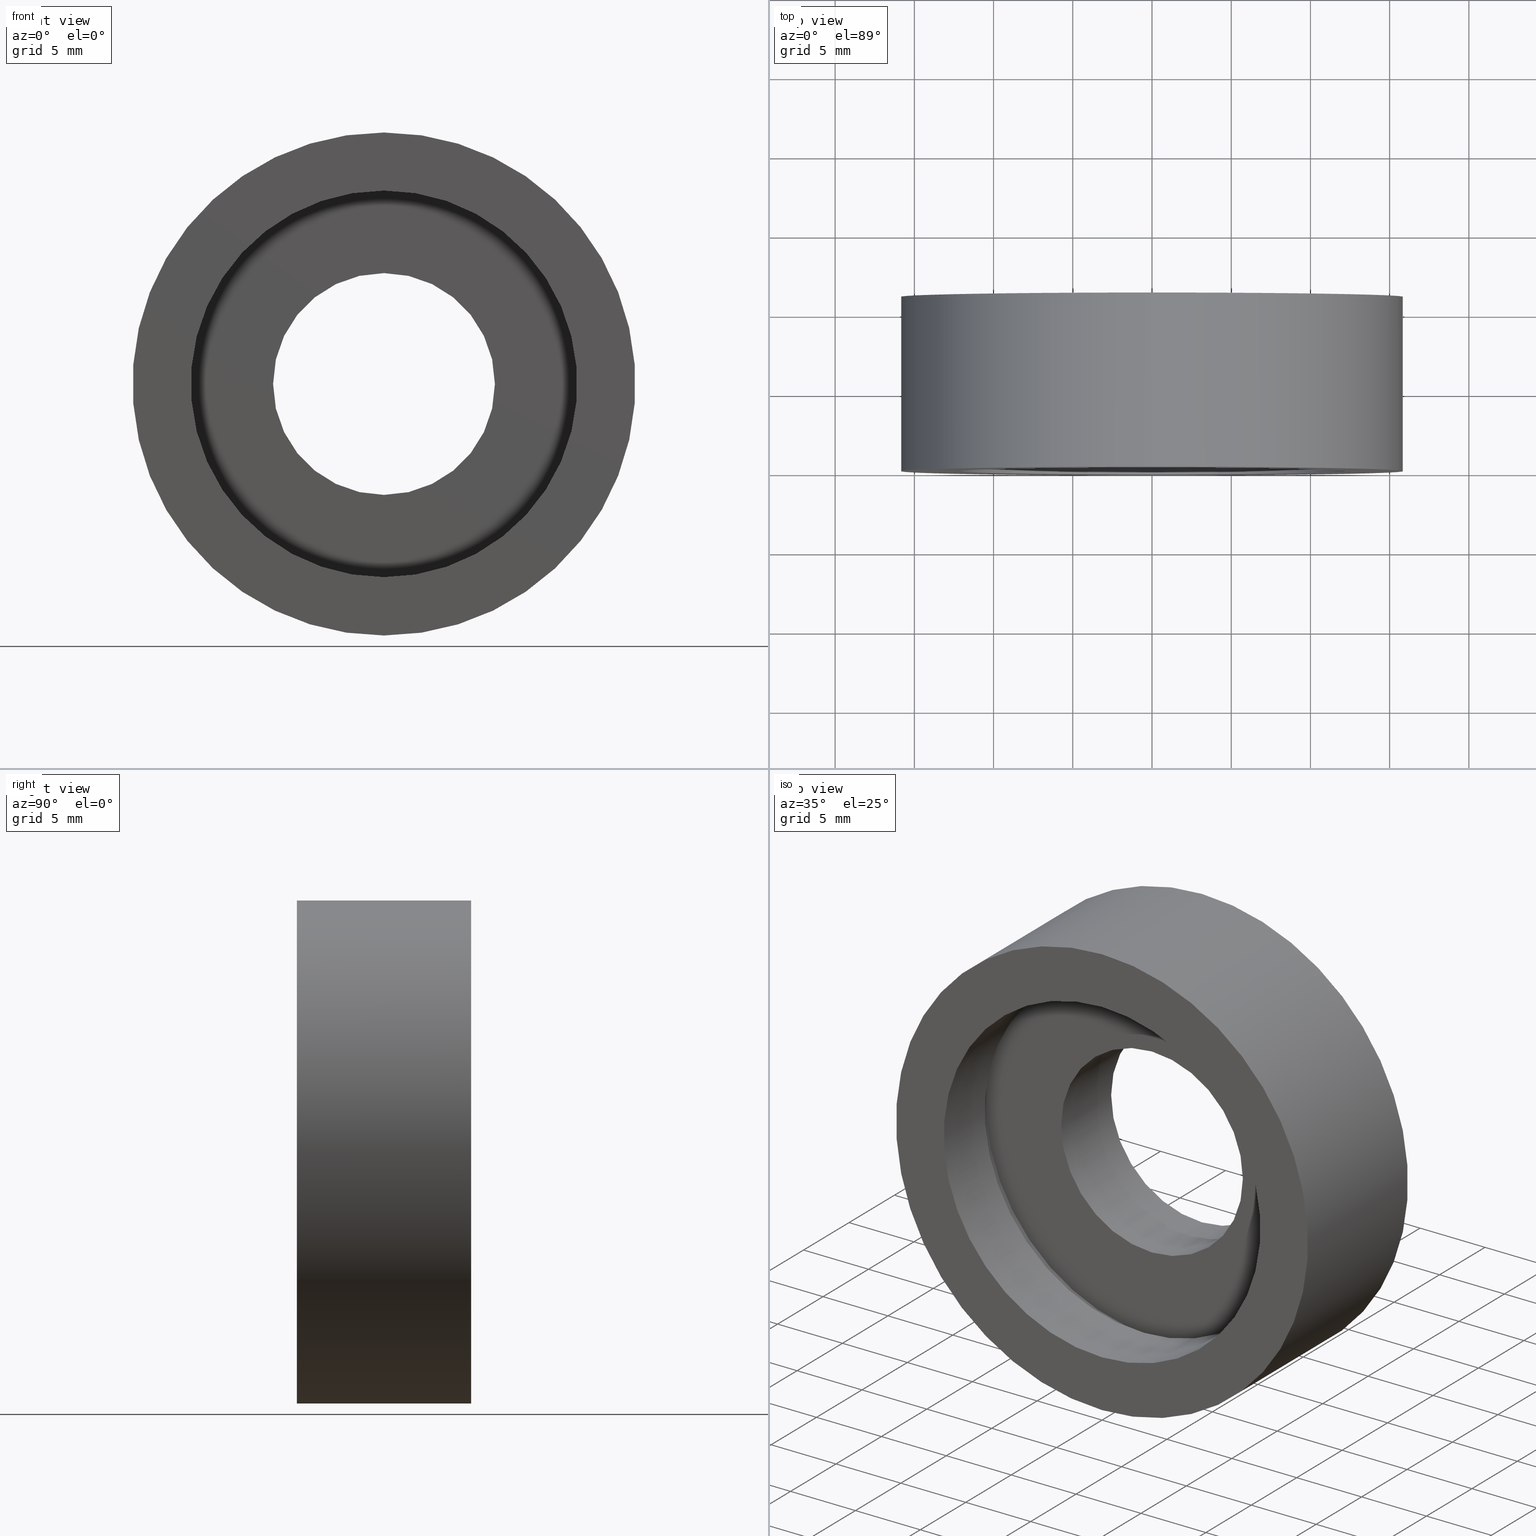
[diagram: canonical four-view strip — front | top / right | iso, engineering-drawing reading convention]
A machine part, canonical four-view strip (front | top / right | iso — engineering-drawing reading convention). The complete STEP part file that produces these views, byte-faithful:
ISO-10303-21;
HEADER;
FILE_DESCRIPTION (( 'STEP AP214' ),
    '1' );
FILE_NAME ('504083.STEP',
    '2019-10-09T08:25:23',
    ( 'user' ),
    ( '΢���й�' ),
    'SwSTEP 2.0',
    'SolidWorks 2016',
    '' );
FILE_SCHEMA (( 'AUTOMOTIVE_DESIGN' ));
ENDSEC;

DATA;
#1 = EDGE_LOOP ( 'NONE', ( #190, #24, #210, #95 ) ) ;
#2 = FACE_OUTER_BOUND ( 'NONE', #269, .T. ) ;
#3 = CARTESIAN_POINT ( 'NONE',  ( 0.0000000000000000000, 4.499999999999997300, 12.80000000000001000 ) ) ;
#4 = AXIS2_PLACEMENT_3D ( 'NONE', #33, #309, #114 ) ;
#5 = CARTESIAN_POINT ( 'NONE',  ( 1.567547902908613200E-015, 5.499999999999998200, -12.80000000000000800 ) ) ;
#6 = CARTESIAN_POINT ( 'NONE',  ( 0.0000000000000000000, 10.99999999999999600, 0.0000000000000000000 ) ) ;
#7 = SURFACE_STYLE_FILL_AREA ( #421 ) ;
#8 = EDGE_LOOP ( 'NONE', ( #228, #15 ) ) ;
#9 = DIRECTION ( 'NONE',  ( -0.0000000000000000000, 1.000000000000000000, -0.0000000000000000000 ) ) ;
#10 = FILL_AREA_STYLE_COLOUR ( '', #130 ) ;
#11 = MECHANICAL_DESIGN_GEOMETRIC_PRESENTATION_REPRESENTATION (  '', ( #56 ), #274 ) ;
#12 = EDGE_CURVE ( 'NONE', #278, #142, #245, .T. ) ;
#13 = SHAPE_DEFINITION_REPRESENTATION ( #206, #79 ) ;
#14 = CARTESIAN_POINT ( 'NONE',  ( 1.494069094959771600E-015, 60.02082041425541100, -12.20000000000000600 ) ) ;
#15 = ORIENTED_EDGE ( 'NONE', *, *, #23, .F. ) ;
#16 = CARTESIAN_POINT ( 'NONE',  ( 0.0000000000000000000, 0.0000000000000000000, 0.0000000000000000000 ) ) ;
#17 = ORIENTED_EDGE ( 'NONE', *, *, #328, .T. ) ;
#18 = DIRECTION ( 'NONE',  ( 0.0000000000000000000, 0.0000000000000000000, 1.000000000000000000 ) ) ;
#19 = ADVANCED_FACE ( 'NONE', ( #2 ), #93, .T. ) ;
#20 = PRODUCT_DEFINITION ( 'δ֪', '', #247, #333 ) ;
#21 = EDGE_LOOP ( 'NONE', ( #306, #74, #349, #65 ) ) ;
#22 = DIRECTION ( 'NONE',  ( -0.0000000000000000000, 1.000000000000000000, -0.0000000000000000000 ) ) ;
#23 = EDGE_CURVE ( 'NONE', #142, #312, #63, .T. ) ;
#24 = ORIENTED_EDGE ( 'NONE', *, *, #355, .F. ) ;
#25 = FACE_OUTER_BOUND ( 'NONE', #423, .T. ) ;
#26 = CYLINDRICAL_SURFACE ( 'NONE', #44, 12.80000000000001000 ) ;
#27 = SURFACE_STYLE_FILL_AREA ( #194 ) ;
#28 =( NAMED_UNIT ( * ) PLANE_ANGLE_UNIT ( ) SI_UNIT ( $, .RADIAN. ) );
#29 = DIRECTION ( 'NONE',  ( -0.0000000000000000000, 1.000000000000000000, -0.0000000000000000000 ) ) ;
#30 = VERTEX_POINT ( 'NONE', #101 ) ;
#31 = CIRCLE ( 'NONE', #364, 15.87500000000000400 ) ;
#32 = AXIS2_PLACEMENT_3D ( 'NONE', #38, #133, #183 ) ;
#33 = CARTESIAN_POINT ( 'NONE',  ( 0.0000000000000000000, 60.02082041425541100, 0.0000000000000000000 ) ) ;
#34 = PRODUCT ( '504083', '504083', '', ( #248 ) ) ;
#35 = AXIS2_PLACEMENT_3D ( 'NONE', #119, #29, #287 ) ;
#36 = DIRECTION ( 'NONE',  ( -0.0000000000000000000, 1.000000000000000000, -0.0000000000000000000 ) ) ;
#37 = DIRECTION ( 'NONE',  ( -0.0000000000000000000, 1.000000000000000000, -0.0000000000000000000 ) ) ;
#38 = CARTESIAN_POINT ( 'NONE',  ( 0.0000000000000000000, 60.02082041425541100, 0.0000000000000000000 ) ) ;
#39 = DIRECTION ( 'NONE',  ( -0.0000000000000000000, 1.000000000000000000, -0.0000000000000000000 ) ) ;
#40 =( NAMED_UNIT ( * ) SI_UNIT ( $, .STERADIAN. ) SOLID_ANGLE_UNIT ( ) );
#41 = SURFACE_STYLE_USAGE ( .BOTH. , #108 ) ;
#42 = VECTOR ( 'NONE', #39, 1000.000000000000000 ) ;
#43 = FILL_AREA_STYLE_COLOUR ( '', #231 ) ;
#44 = AXIS2_PLACEMENT_3D ( 'NONE', #92, #98, #90 ) ;
#45 = DIRECTION ( 'NONE',  ( -0.0000000000000000000, 1.000000000000000000, -0.0000000000000000000 ) ) ;
#46 = AXIS2_PLACEMENT_3D ( 'NONE', #318, #97, #129 ) ;
#47 = FACE_BOUND ( 'NONE', #8, .T. ) ;
#48 = ORIENTED_EDGE ( 'NONE', *, *, #382, .T. ) ;
#49 =( NAMED_UNIT ( * ) SI_UNIT ( $, .STERADIAN. ) SOLID_ANGLE_UNIT ( ) );
#50 =( NAMED_UNIT ( * ) SI_UNIT ( $, .STERADIAN. ) SOLID_ANGLE_UNIT ( ) );
#51 = CARTESIAN_POINT ( 'NONE',  ( 1.567547902908613400E-015, 60.02082041425541100, -12.80000000000001000 ) ) ;
#52 = ADVANCED_FACE ( 'NONE', ( #416, #431 ), #424, .F. ) ;
#53 = VECTOR ( 'NONE', #188, 1000.000000000000000 ) ;
#54 = EDGE_CURVE ( 'NONE', #358, #259, #402, .T. ) ;
#55 = DIRECTION ( 'NONE',  ( 0.0000000000000000000, 0.0000000000000000000, 1.000000000000000000 ) ) ;
#56 = STYLED_ITEM ( 'NONE', ( #255 ), #394 ) ;
#57 = ADVANCED_FACE ( 'NONE', ( #317 ), #86, .F. ) ;
#58 = SURFACE_STYLE_FILL_AREA ( #288 ) ;
#59 = UNCERTAINTY_MEASURE_WITH_UNIT (LENGTH_MEASURE( 1.000000000000000100E-005 ), #250, 'distance_accuracy_value', 'NONE');
#60 = LINE ( 'NONE', #428, #397 ) ;
#61 = VERTEX_POINT ( 'NONE', #390 ) ;
#62 = PRESENTATION_LAYER_ASSIGNMENT (  '', '', ( #56 ) ) ;
#63 = CIRCLE ( 'NONE', #89, 7.000000000000007100 ) ;
#64 = MECHANICAL_DESIGN_GEOMETRIC_PRESENTATION_REPRESENTATION (  '', ( #415 ), #85 ) ;
#65 = ORIENTED_EDGE ( 'NONE', *, *, #246, .T. ) ;
#66 = ORIENTED_EDGE ( 'NONE', *, *, #314, .T. ) ;
#67 = PRESENTATION_LAYER_ASSIGNMENT (  '', '', ( #415 ) ) ;
#68 = ORIENTED_EDGE ( 'NONE', *, *, #351, .F. ) ;
#69 = CARTESIAN_POINT ( 'NONE',  ( 0.0000000000000000000, 4.499999999999997300, 0.0000000000000000000 ) ) ;
#70 = FILL_AREA_STYLE ('',( #127 ) ) ;
#71 = ORIENTED_EDGE ( 'NONE', *, *, #314, .F. ) ;
#72 = CARTESIAN_POINT ( 'NONE',  ( 7.000000000000007100, 11.00000000000000000, 0.0000000000000000000 ) ) ;
#73 = FACE_OUTER_BOUND ( 'NONE', #76, .T. ) ;
#74 = ORIENTED_EDGE ( 'NONE', *, *, #251, .F. ) ;
#75 = SURFACE_STYLE_USAGE ( .BOTH. , #195 ) ;
#76 = EDGE_LOOP ( 'NONE', ( #240, #152 ) ) ;
#77 =( NAMED_UNIT ( * ) PLANE_ANGLE_UNIT ( ) SI_UNIT ( $, .RADIAN. ) );
#78 = DIRECTION ( 'NONE',  ( -0.0000000000000000000, 1.000000000000000000, -0.0000000000000000000 ) ) ;
#79 = ADVANCED_BREP_SHAPE_REPRESENTATION ( '504083', ( #208, #321 ), #401 ) ;
#80 = DIRECTION ( 'NONE',  ( -0.0000000000000000000, 1.000000000000000000, 0.0000000000000000000 ) ) ;
#81 = ORIENTED_EDGE ( 'NONE', *, *, #12, .F. ) ;
#82 = DIRECTION ( 'NONE',  ( 0.0000000000000000000, 0.0000000000000000000, 1.000000000000000000 ) ) ;
#83 = PRODUCT_RELATED_PRODUCT_CATEGORY ( 'part', '', ( #34 ) ) ;
#84 = ADVANCED_FACE ( 'NONE', ( #307 ), #346, .F. ) ;
#85 =( GEOMETRIC_REPRESENTATION_CONTEXT ( 3 ) GLOBAL_UNCERTAINTY_ASSIGNED_CONTEXT ( ( #411 ) ) GLOBAL_UNIT_ASSIGNED_CONTEXT ( ( #144, #217, #420 ) ) REPRESENTATION_CONTEXT ( 'NONE', 'WORKASPACE' ) );
#86 = CYLINDRICAL_SURFACE ( 'NONE', #32, 12.20000000000000600 ) ;
#87 = EDGE_LOOP ( 'NONE', ( #215, #253, #173, #105 ) ) ;
#88 = ORIENTED_EDGE ( 'NONE', *, *, #91, .T. ) ;
#89 = AXIS2_PLACEMENT_3D ( 'NONE', #6, #122, #202 ) ;
#90 = DIRECTION ( 'NONE',  ( 0.0000000000000000000, 0.0000000000000000000, 1.000000000000000000 ) ) ;
#91 = EDGE_CURVE ( 'NONE', #61, #198, #320, .T. ) ;
#92 = CARTESIAN_POINT ( 'NONE',  ( 0.0000000000000000000, 60.02082041425541100, 0.0000000000000000000 ) ) ;
#93 = CYLINDRICAL_SURFACE ( 'NONE', #99, 15.87500000000000400 ) ;
#94 = DIRECTION ( 'NONE',  ( -0.0000000000000000000, 1.000000000000000000, -0.0000000000000000000 ) ) ;
#95 = ORIENTED_EDGE ( 'NONE', *, *, #336, .T. ) ;
#96 = VECTOR ( 'NONE', #429, 1000.000000000000000 ) ;
#97 = DIRECTION ( 'NONE',  ( -0.0000000000000000000, 1.000000000000000000, 0.0000000000000000000 ) ) ;
#98 = DIRECTION ( 'NONE',  ( -0.0000000000000000000, 1.000000000000000000, -0.0000000000000000000 ) ) ;
#99 = AXIS2_PLACEMENT_3D ( 'NONE', #377, #78, #193 ) ;
#100 = CARTESIAN_POINT ( 'NONE',  ( 1.944126793646423600E-015, 60.02082041425541100, -15.87500000000000400 ) ) ;
#101 = CARTESIAN_POINT ( 'NONE',  ( 0.0000000000000000000, 5.499999999999998200, 12.80000000000000800 ) ) ;
#102 = STYLED_ITEM ( 'NONE', ( #166 ), #57 ) ;
#103 = DIRECTION ( 'NONE',  ( -0.0000000000000000000, 1.000000000000000000, -0.0000000000000000000 ) ) ;
#104 = EDGE_LOOP ( 'NONE', ( #68, #126, #204, #353 ) ) ;
#105 = ORIENTED_EDGE ( 'NONE', *, *, #218, .F. ) ;
#106 = AXIS2_PLACEMENT_3D ( 'NONE', #294, #239, #300 ) ;
#107 = UNCERTAINTY_MEASURE_WITH_UNIT (LENGTH_MEASURE( 1.000000000000000100E-005 ), #185, 'distance_accuracy_value', 'NONE');
#108 = SURFACE_SIDE_STYLE ('',( #58 ) ) ;
#109 = ORIENTED_EDGE ( 'NONE', *, *, #351, .T. ) ;
#110 = ORIENTED_EDGE ( 'NONE', *, *, #328, .F. ) ;
#111 = ADVANCED_FACE ( 'NONE', ( #73, #403 ), #369, .F. ) ;
#112 =( NAMED_UNIT ( * ) PLANE_ANGLE_UNIT ( ) SI_UNIT ( $, .RADIAN. ) );
#113 = EDGE_CURVE ( 'NONE', #282, #225, #216, .T. ) ;
#114 = DIRECTION ( 'NONE',  ( 0.0000000000000000000, 0.0000000000000000000, 1.000000000000000000 ) ) ;
#115 = CIRCLE ( 'NONE', #348, 7.000000000000006200 ) ;
#116 = ADVANCED_FACE ( 'NONE', ( #330 ), #26, .F. ) ;
#117 = AXIS2_PLACEMENT_3D ( 'NONE', #128, #22, #334 ) ;
#118 = DIRECTION ( 'NONE',  ( 0.0000000000000000000, 0.0000000000000000000, 1.000000000000000000 ) ) ;
#119 = CARTESIAN_POINT ( 'NONE',  ( 0.0000000000000000000, 5.499999999999998200, 0.0000000000000000000 ) ) ;
#120 = COLOUR_RGB ( '',1.000000000000000000, 1.000000000000000000, 1.000000000000000000 ) ;
#121 = CARTESIAN_POINT ( 'NONE',  ( 1.494069094959771600E-015, 4.499999999999997300, -12.20000000000000600 ) ) ;
#122 = DIRECTION ( 'NONE',  ( -0.0000000000000000000, 1.000000000000000000, -0.0000000000000000000 ) ) ;
#123 = ADVANCED_FACE ( 'NONE', ( #211, #260 ), #400, .F. ) ;
#124 = UNCERTAINTY_MEASURE_WITH_UNIT (LENGTH_MEASURE( 1.000000000000000100E-005 ), #244, 'distance_accuracy_value', 'NONE');
#125 = DIRECTION ( 'NONE',  ( 0.0000000000000000000, 0.0000000000000000000, 1.000000000000000000 ) ) ;
#126 = ORIENTED_EDGE ( 'NONE', *, *, #224, .T. ) ;
#127 = FILL_AREA_STYLE_COLOUR ( '', #205 ) ;
#128 = CARTESIAN_POINT ( 'NONE',  ( 0.0000000000000000000, 4.499999999999997300, 0.0000000000000000000 ) ) ;
#129 = DIRECTION ( 'NONE',  ( 0.0000000000000000000, 0.0000000000000000000, 1.000000000000000000 ) ) ;
#130 = COLOUR_RGB ( '',1.000000000000000000, 1.000000000000000000, 1.000000000000000000 ) ;
#131 = CARTESIAN_POINT ( 'NONE',  ( 0.0000000000000000000, 60.02082041425541100, 7.000000000000006200 ) ) ;
#132 = AXIS2_PLACEMENT_3D ( 'NONE', #16, #36, #55 ) ;
#133 = DIRECTION ( 'NONE',  ( -0.0000000000000000000, 1.000000000000000000, -0.0000000000000000000 ) ) ;
#134 = ORIENTED_EDGE ( 'NONE', *, *, #232, .T. ) ;
#135 = ORIENTED_EDGE ( 'NONE', *, *, #140, .F. ) ;
#136 = APPLICATION_CONTEXT ( 'automotive_design' ) ;
#137 = FACE_OUTER_BOUND ( 'NONE', #104, .T. ) ;
#138 = PRESENTATION_STYLE_ASSIGNMENT (( #227 ) ) ;
#139 = VERTEX_POINT ( 'NONE', #329 ) ;
#140 = EDGE_CURVE ( 'NONE', #160, #30, #147, .T. ) ;
#141 = CARTESIAN_POINT ( 'NONE',  ( 0.0000000000000000000, 0.0000000000000000000, 15.87500000000000400 ) ) ;
#142 = VERTEX_POINT ( 'NONE', #262 ) ;
#143 = CIRCLE ( 'NONE', #297, 15.87500000000000400 ) ;
#144 =( LENGTH_UNIT ( ) NAMED_UNIT ( * ) SI_UNIT ( .MILLI., .METRE. ) );
#145 = LINE ( 'NONE', #131, #53 ) ;
#146 = ORIENTED_EDGE ( 'NONE', *, *, #355, .T. ) ;
#147 = LINE ( 'NONE', #226, #42 ) ;
#148 = AXIS2_PLACEMENT_3D ( 'NONE', #69, #365, #235 ) ;
#149 = DIRECTION ( 'NONE',  ( -0.0000000000000000000, 1.000000000000000000, -0.0000000000000000000 ) ) ;
#150 = EDGE_LOOP ( 'NONE', ( #230, #266 ) ) ;
#151 = VECTOR ( 'NONE', #304, 1000.000000000000000 ) ;
#152 = ORIENTED_EDGE ( 'NONE', *, *, #382, .F. ) ;
#153 = DIRECTION ( 'NONE',  ( -0.0000000000000000000, 1.000000000000000000, -0.0000000000000000000 ) ) ;
#154 = SURFACE_SIDE_STYLE ('',( #157 ) ) ;
#155 = CARTESIAN_POINT ( 'NONE',  ( 0.0000000000000000000, 60.02082041425541100, 0.0000000000000000000 ) ) ;
#156 = VERTEX_POINT ( 'NONE', #237 ) ;
#157 = SURFACE_STYLE_FILL_AREA ( #70 ) ;
#158 =( LENGTH_UNIT ( ) NAMED_UNIT ( * ) SI_UNIT ( .MILLI., .METRE. ) );
#159 = FILL_AREA_STYLE_COLOUR ( '', #254 ) ;
#160 = VERTEX_POINT ( 'NONE', #3 ) ;
#161 = DIRECTION ( 'NONE',  ( 0.0000000000000000000, 0.0000000000000000000, 1.000000000000000000 ) ) ;
#162 = CIRCLE ( 'NONE', #117, 12.80000000000001000 ) ;
#163 = UNCERTAINTY_MEASURE_WITH_UNIT (LENGTH_MEASURE( 1.000000000000000100E-005 ), #299, 'distance_accuracy_value', 'NONE');
#164 = AXIS2_PLACEMENT_3D ( 'NONE', #72, #389, #191 ) ;
#165 = DIRECTION ( 'NONE',  ( 0.0000000000000000000, 0.0000000000000000000, 1.000000000000000000 ) ) ;
#166 = PRESENTATION_STYLE_ASSIGNMENT (( #41 ) ) ;
#167 = DIRECTION ( 'NONE',  ( 0.0000000000000000000, 0.0000000000000000000, 1.000000000000000000 ) ) ;
#168 = PRESENTATION_LAYER_ASSIGNMENT (  '', '', ( #102 ) ) ;
#169 = CLOSED_SHELL ( 'NONE', ( #19, #394, #116, #57, #123, #409, #52, #84, #111, #178, #414, #219 ) ) ;
#170 =( NAMED_UNIT ( * ) SI_UNIT ( $, .STERADIAN. ) SOLID_ANGLE_UNIT ( ) );
#171 = MECHANICAL_DESIGN_GEOMETRIC_PRESENTATION_REPRESENTATION (  '', ( #102 ), #398 ) ;
#172 = CARTESIAN_POINT ( 'NONE',  ( 0.0000000000000000000, 10.99999999999999600, 0.0000000000000000000 ) ) ;
#173 = ORIENTED_EDGE ( 'NONE', *, *, #207, .T. ) ;
#174 = CIRCLE ( 'NONE', #35, 12.80000000000000800 ) ;
#175 =( LENGTH_UNIT ( ) NAMED_UNIT ( * ) SI_UNIT ( .MILLI., .METRE. ) );
#176 = CARTESIAN_POINT ( 'NONE',  ( 0.0000000000000000000, 5.499999999999998200, 0.0000000000000000000 ) ) ;
#177 = CARTESIAN_POINT ( 'NONE',  ( 0.0000000000000000000, 10.99999999999999600, 15.87500000000000400 ) ) ;
#178 = ADVANCED_FACE ( 'NONE', ( #221 ), #209, .F. ) ;
#179 = CIRCLE ( 'NONE', #200, 7.000000000000006200 ) ;
#180 = ORIENTED_EDGE ( 'NONE', *, *, #242, .F. ) ;
#181 = STYLED_ITEM ( 'NONE', ( #280 ), #409 ) ;
#182 = PRESENTATION_LAYER_ASSIGNMENT (  '', '', ( #342 ) ) ;
#183 = DIRECTION ( 'NONE',  ( 0.0000000000000000000, 0.0000000000000000000, 1.000000000000000000 ) ) ;
#184 = PRESENTATION_LAYER_ASSIGNMENT (  '', '', ( #372 ) ) ;
#185 =( LENGTH_UNIT ( ) NAMED_UNIT ( * ) SI_UNIT ( .MILLI., .METRE. ) );
#186 = VECTOR ( 'NONE', #335, 1000.000000000000000 ) ;
#187 = ORIENTED_EDGE ( 'NONE', *, *, #252, .F. ) ;
#188 = DIRECTION ( 'NONE',  ( -0.0000000000000000000, 1.000000000000000000, -0.0000000000000000000 ) ) ;
#189 =( NAMED_UNIT ( * ) PLANE_ANGLE_UNIT ( ) SI_UNIT ( $, .RADIAN. ) );
#190 = ORIENTED_EDGE ( 'NONE', *, *, #283, .F. ) ;
#191 = DIRECTION ( 'NONE',  ( 0.0000000000000000000, -0.0000000000000000000, -1.000000000000000000 ) ) ;
#192 = LINE ( 'NONE', #51, #96 ) ;
#193 = DIRECTION ( 'NONE',  ( 0.0000000000000000000, 0.0000000000000000000, 1.000000000000000000 ) ) ;
#194 = FILL_AREA_STYLE ('',( #289 ) ) ;
#195 = SURFACE_SIDE_STYLE ('',( #27 ) ) ;
#196 = CARTESIAN_POINT ( 'NONE',  ( 0.0000000000000000000, 5.499999999999998200, 0.0000000000000000000 ) ) ;
#197 = CYLINDRICAL_SURFACE ( 'NONE', #214, 7.000000000000006200 ) ;
#198 = VERTEX_POINT ( 'NONE', #177 ) ;
#199 = DIRECTION ( 'NONE',  ( -0.0000000000000000000, 1.000000000000000000, -0.0000000000000000000 ) ) ;
#200 = AXIS2_PLACEMENT_3D ( 'NONE', #298, #199, #366 ) ;
#201 = MECHANICAL_DESIGN_GEOMETRIC_PRESENTATION_REPRESENTATION (  '', ( #342 ), #273 ) ;
#202 = DIRECTION ( 'NONE',  ( 0.0000000000000000000, 0.0000000000000000000, 1.000000000000000000 ) ) ;
#203 = APPLICATION_PROTOCOL_DEFINITION ( 'draft international standard', 'automotive_design', 1998, #136 ) ;
#204 = ORIENTED_EDGE ( 'NONE', *, *, #243, .T. ) ;
#205 = COLOUR_RGB ( '',1.000000000000000000, 1.000000000000000000, 1.000000000000000000 ) ;
#206 = PRODUCT_DEFINITION_SHAPE ( 'NONE', 'NONE',  #20 ) ;
#207 = EDGE_CURVE ( 'NONE', #259, #139, #284, .T. ) ;
#208 = MANIFOLD_SOLID_BREP ( '��ת1', #169 ) ;
#209 = CYLINDRICAL_SURFACE ( 'NONE', #238, 7.000000000000006200 ) ;
#210 = ORIENTED_EDGE ( 'NONE', *, *, #140, .T. ) ;
#211 = FACE_OUTER_BOUND ( 'NONE', #150, .T. ) ;
#212 = CIRCLE ( 'NONE', #339, 7.000000000000007100 ) ;
#213 =( GEOMETRIC_REPRESENTATION_CONTEXT ( 3 ) GLOBAL_UNCERTAINTY_ASSIGNED_CONTEXT ( ( #107 ) ) GLOBAL_UNIT_ASSIGNED_CONTEXT ( ( #185, #189, #378 ) ) REPRESENTATION_CONTEXT ( 'NONE', 'WORKASPACE' ) );
#214 = AXIS2_PLACEMENT_3D ( 'NONE', #419, #37, #18 ) ;
#215 = ORIENTED_EDGE ( 'NONE', *, *, #232, .F. ) ;
#216 = CIRCLE ( 'NONE', #432, 15.87500000000000400 ) ;
#217 =( NAMED_UNIT ( * ) PLANE_ANGLE_UNIT ( ) SI_UNIT ( $, .RADIAN. ) );
#218 = EDGE_CURVE ( 'NONE', #222, #139, #60, .T. ) ;
#219 = ADVANCED_FACE ( 'NONE', ( #137 ), #302, .T. ) ;
#220 = PRESENTATION_STYLE_ASSIGNMENT (( #229 ) ) ;
#221 = FACE_OUTER_BOUND ( 'NONE', #249, .T. ) ;
#222 = VERTEX_POINT ( 'NONE', #388 ) ;
#223 = ORIENTED_EDGE ( 'NONE', *, *, #12, .T. ) ;
#224 = EDGE_CURVE ( 'NONE', #225, #282, #143, .T. ) ;
#225 = VERTEX_POINT ( 'NONE', #391 ) ;
#226 = CARTESIAN_POINT ( 'NONE',  ( 0.0000000000000000000, 60.02082041425541100, 12.80000000000001000 ) ) ;
#227 = SURFACE_STYLE_USAGE ( .BOTH. , #154 ) ;
#228 = ORIENTED_EDGE ( 'NONE', *, *, #265, .F. ) ;
#229 = SURFACE_STYLE_USAGE ( .BOTH. , #343 ) ;
#230 = ORIENTED_EDGE ( 'NONE', *, *, #113, .F. ) ;
#231 = COLOUR_RGB ( '',1.000000000000000000, 1.000000000000000000, 1.000000000000000000 ) ;
#232 = EDGE_CURVE ( 'NONE', #358, #222, #368, .T. ) ;
#233 = ORIENTED_EDGE ( 'NONE', *, *, #23, .T. ) ;
#234 = ORIENTED_EDGE ( 'NONE', *, *, #246, .F. ) ;
#235 = DIRECTION ( 'NONE',  ( 0.0000000000000000000, 0.0000000000000000000, 1.000000000000000000 ) ) ;
#236 = ORIENTED_EDGE ( 'NONE', *, *, #251, .T. ) ;
#237 = CARTESIAN_POINT ( 'NONE',  ( 1.567547902908613400E-015, 4.499999999999997300, -12.80000000000001000 ) ) ;
#238 = AXIS2_PLACEMENT_3D ( 'NONE', #292, #408, #290 ) ;
#239 = DIRECTION ( 'NONE',  ( 0.0000000000000000000, -1.000000000000000000, 0.0000000000000000000 ) ) ;
#240 = ORIENTED_EDGE ( 'NONE', *, *, #336, .F. ) ;
#241 = LINE ( 'NONE', #100, #151 ) ;
#242 = EDGE_CURVE ( 'NONE', #198, #61, #31, .T. ) ;
#243 = EDGE_CURVE ( 'NONE', #282, #198, #326, .T. ) ;
#244 =( LENGTH_UNIT ( ) NAMED_UNIT ( * ) SI_UNIT ( .MILLI., .METRE. ) );
#245 = LINE ( 'NONE', #405, #430 ) ;
#246 = EDGE_CURVE ( 'NONE', #139, #259, #340, .T. ) ;
#247 = PRODUCT_DEFINITION_FORMATION_WITH_SPECIFIED_SOURCE ( '�κ�', '', #34, .NOT_KNOWN. ) ;
#248 = PRODUCT_CONTEXT ( 'NONE', #344, 'mechanical' ) ;
#249 = EDGE_LOOP ( 'NONE', ( #81, #110, #384, #270 ) ) ;
#250 =( LENGTH_UNIT ( ) NAMED_UNIT ( * ) SI_UNIT ( .MILLI., .METRE. ) );
#251 = EDGE_CURVE ( 'NONE', #222, #358, #277, .T. ) ;
#252 = EDGE_CURVE ( 'NONE', #156, #160, #367, .T. ) ;
#253 = ORIENTED_EDGE ( 'NONE', *, *, #54, .T. ) ;
#254 = COLOUR_RGB ( '',1.000000000000000000, 1.000000000000000000, 1.000000000000000000 ) ;
#255 = PRESENTATION_STYLE_ASSIGNMENT (( #264 ) ) ;
#256 =( GEOMETRIC_REPRESENTATION_CONTEXT ( 3 ) GLOBAL_UNCERTAINTY_ASSIGNED_CONTEXT ( ( #124 ) ) GLOBAL_UNIT_ASSIGNED_CONTEXT ( ( #244, #112, #50 ) ) REPRESENTATION_CONTEXT ( 'NONE', 'WORKASPACE' ) );
#257 = PLANE ( 'NONE',  #164 ) ;
#258 = DIRECTION ( 'NONE',  ( -0.0000000000000000000, 1.000000000000000000, -0.0000000000000000000 ) ) ;
#259 = VERTEX_POINT ( 'NONE', #121 ) ;
#260 = FACE_BOUND ( 'NONE', #338, .T. ) ;
#261 = EDGE_LOOP ( 'NONE', ( #187, #370, #48, #135 ) ) ;
#262 = CARTESIAN_POINT ( 'NONE',  ( 8.572527594031482100E-016, 10.99999999999999600, -7.000000000000008000 ) ) ;
#263 = CARTESIAN_POINT ( 'NONE',  ( 12.80000000000000800, 5.499999999999999100, 0.0000000000000000000 ) ) ;
#264 = SURFACE_STYLE_USAGE ( .BOTH. , #374 ) ;
#265 = EDGE_CURVE ( 'NONE', #312, #142, #212, .T. ) ;
#266 = ORIENTED_EDGE ( 'NONE', *, *, #224, .F. ) ;
#267 = FILL_AREA_STYLE ('',( #10 ) ) ;
#268 = ORIENTED_EDGE ( 'NONE', *, *, #252, .T. ) ;
#269 = EDGE_LOOP ( 'NONE', ( #327, #109, #180, #315 ) ) ;
#270 = ORIENTED_EDGE ( 'NONE', *, *, #265, .T. ) ;
#271 = APPLICATION_PROTOCOL_DEFINITION ( 'draft international standard', 'automotive_design', 1998, #344 ) ;
#272 = CARTESIAN_POINT ( 'NONE',  ( 0.0000000000000000000, 10.99999999999999600, 0.0000000000000000000 ) ) ;
#273 =( GEOMETRIC_REPRESENTATION_CONTEXT ( 3 ) GLOBAL_UNCERTAINTY_ASSIGNED_CONTEXT ( ( #399 ) ) GLOBAL_UNIT_ASSIGNED_CONTEXT ( ( #158, #77, #170 ) ) REPRESENTATION_CONTEXT ( 'NONE', 'WORKASPACE' ) );
#274 =( GEOMETRIC_REPRESENTATION_CONTEXT ( 3 ) GLOBAL_UNCERTAINTY_ASSIGNED_CONTEXT ( ( #163 ) ) GLOBAL_UNIT_ASSIGNED_CONTEXT ( ( #299, #279, #40 ) ) REPRESENTATION_CONTEXT ( 'NONE', 'WORKASPACE' ) );
#275 = DIRECTION ( 'NONE',  ( -0.0000000000000000000, 1.000000000000000000, -0.0000000000000000000 ) ) ;
#276 = EDGE_LOOP ( 'NONE', ( #234, #352 ) ) ;
#277 = CIRCLE ( 'NONE', #132, 12.20000000000000600 ) ;
#278 = VERTEX_POINT ( 'NONE', #341 ) ;
#279 =( NAMED_UNIT ( * ) PLANE_ANGLE_UNIT ( ) SI_UNIT ( $, .RADIAN. ) );
#280 = PRESENTATION_STYLE_ASSIGNMENT (( #75 ) ) ;
#281 = CARTESIAN_POINT ( 'NONE',  ( 0.0000000000000000000, 60.02082041425541100, 0.0000000000000000000 ) ) ;
#282 = VERTEX_POINT ( 'NONE', #141 ) ;
#283 = EDGE_CURVE ( 'NONE', #156, #296, #192, .T. ) ;
#284 = CIRCLE ( 'NONE', #148, 12.20000000000000600 ) ;
#285 = DIRECTION ( 'NONE',  ( 1.000000000000000000, 0.0000000000000000000, 0.0000000000000000000 ) ) ;
#286 = MECHANICAL_DESIGN_GEOMETRIC_PRESENTATION_REPRESENTATION (  '', ( #372 ), #256 ) ;
#287 = DIRECTION ( 'NONE',  ( 0.0000000000000000000, 0.0000000000000000000, 1.000000000000000000 ) ) ;
#288 = FILL_AREA_STYLE ('',( #43 ) ) ;
#289 = FILL_AREA_STYLE_COLOUR ( '', #120 ) ;
#290 = DIRECTION ( 'NONE',  ( 0.0000000000000000000, 0.0000000000000000000, 1.000000000000000000 ) ) ;
#291 = SURFACE_SIDE_STYLE ('',( #7 ) ) ;
#292 = CARTESIAN_POINT ( 'NONE',  ( 0.0000000000000000000, 60.02082041425541100, 0.0000000000000000000 ) ) ;
#293 = EDGE_LOOP ( 'NONE', ( #146, #268 ) ) ;
#294 = CARTESIAN_POINT ( 'NONE',  ( 12.20000000000000600, 4.500000000000000000, 0.0000000000000000000 ) ) ;
#295 = FILL_AREA_STYLE ('',( #345 ) ) ;
#296 = VERTEX_POINT ( 'NONE', #5 ) ;
#297 = AXIS2_PLACEMENT_3D ( 'NONE', #373, #371, #354 ) ;
#298 = CARTESIAN_POINT ( 'NONE',  ( 0.0000000000000000000, 5.499999999999998200, 0.0000000000000000000 ) ) ;
#299 =( LENGTH_UNIT ( ) NAMED_UNIT ( * ) SI_UNIT ( .MILLI., .METRE. ) );
#300 = DIRECTION ( 'NONE',  ( 0.0000000000000000000, -0.0000000000000000000, -1.000000000000000000 ) ) ;
#301 = SURFACE_STYLE_FILL_AREA ( #295 ) ;
#302 = CYLINDRICAL_SURFACE ( 'NONE', #360, 15.87500000000000400 ) ;
#303 = AXIS2_PLACEMENT_3D ( 'NONE', #196, #258, #413 ) ;
#304 = DIRECTION ( 'NONE',  ( -0.0000000000000000000, 1.000000000000000000, -0.0000000000000000000 ) ) ;
#305 = AXIS2_PLACEMENT_3D ( 'NONE', #331, #324, #319 ) ;
#306 = ORIENTED_EDGE ( 'NONE', *, *, #54, .F. ) ;
#307 = FACE_OUTER_BOUND ( 'NONE', #1, .T. ) ;
#308 = DIRECTION ( 'NONE',  ( -0.0000000000000000000, 1.000000000000000000, -0.0000000000000000000 ) ) ;
#309 = DIRECTION ( 'NONE',  ( -0.0000000000000000000, 1.000000000000000000, -0.0000000000000000000 ) ) ;
#310 = EDGE_LOOP ( 'NONE', ( #17, #66 ) ) ;
#311 = DIRECTION ( 'NONE',  ( 0.0000000000000000000, 0.0000000000000000000, 1.000000000000000000 ) ) ;
#312 = VERTEX_POINT ( 'NONE', #379 ) ;
#313 = CARTESIAN_POINT ( 'NONE',  ( 0.0000000000000000000, 5.499999999999998200, 7.000000000000006200 ) ) ;
#314 = EDGE_CURVE ( 'NONE', #278, #386, #115, .T. ) ;
#315 = ORIENTED_EDGE ( 'NONE', *, *, #243, .F. ) ;
#316 = DIRECTION ( 'NONE',  ( 0.0000000000000000000, 0.0000000000000000000, 1.000000000000000000 ) ) ;
#317 = FACE_OUTER_BOUND ( 'NONE', #87, .T. ) ;
#318 = CARTESIAN_POINT ( 'NONE',  ( 15.87500000000000400, -2.250288493433258000E-016, 0.0000000000000000000 ) ) ;
#319 = DIRECTION ( 'NONE',  ( 0.0000000000000000000, 0.0000000000000000000, 1.000000000000000000 ) ) ;
#320 = CIRCLE ( 'NONE', #404, 15.87500000000000400 ) ;
#321 = AXIS2_PLACEMENT_3D ( 'NONE', #359, #406, #285 ) ;
#322 = SURFACE_STYLE_FILL_AREA ( #267 ) ;
#323 = EDGE_CURVE ( 'NONE', #386, #312, #145, .T. ) ;
#324 = DIRECTION ( 'NONE',  ( -0.0000000000000000000, 1.000000000000000000, -0.0000000000000000000 ) ) ;
#325 = ORIENTED_EDGE ( 'NONE', *, *, #323, .F. ) ;
#326 = LINE ( 'NONE', #376, #186 ) ;
#327 = ORIENTED_EDGE ( 'NONE', *, *, #113, .T. ) ;
#328 = EDGE_CURVE ( 'NONE', #386, #278, #179, .T. ) ;
#329 = CARTESIAN_POINT ( 'NONE',  ( 0.0000000000000000000, 4.499999999999997300, 12.20000000000000600 ) ) ;
#330 = FACE_OUTER_BOUND ( 'NONE', #261, .T. ) ;
#331 = CARTESIAN_POINT ( 'NONE',  ( 0.0000000000000000000, 0.0000000000000000000, 0.0000000000000000000 ) ) ;
#332 = UNCERTAINTY_MEASURE_WITH_UNIT (LENGTH_MEASURE( 1.000000000000000100E-005 ), #175, 'distance_accuracy_value', 'NONE');
#333 = PRODUCT_DEFINITION_CONTEXT ( 'detailed design', #136, 'design' ) ;
#334 = DIRECTION ( 'NONE',  ( 0.0000000000000000000, 0.0000000000000000000, 1.000000000000000000 ) ) ;
#335 = DIRECTION ( 'NONE',  ( -0.0000000000000000000, 1.000000000000000000, -0.0000000000000000000 ) ) ;
#336 = EDGE_CURVE ( 'NONE', #30, #296, #362, .T. ) ;
#337 = DIRECTION ( 'NONE',  ( 0.0000000000000000000, 0.0000000000000000000, 1.000000000000000000 ) ) ;
#338 = EDGE_LOOP ( 'NONE', ( #236, #134 ) ) ;
#339 = AXIS2_PLACEMENT_3D ( 'NONE', #172, #410, #167 ) ;
#340 = CIRCLE ( 'NONE', #387, 12.20000000000000600 ) ;
#341 = CARTESIAN_POINT ( 'NONE',  ( 8.572527594031480100E-016, 5.499999999999998200, -7.000000000000006200 ) ) ;
#342 = STYLED_ITEM ( 'NONE', ( #220 ), #79 ) ;
#343 = SURFACE_SIDE_STYLE ('',( #301 ) ) ;
#344 = APPLICATION_CONTEXT ( 'automotive_design' ) ;
#345 = FILL_AREA_STYLE_COLOUR ( '', #393 ) ;
#346 = CYLINDRICAL_SURFACE ( 'NONE', #4, 12.80000000000001000 ) ;
#347 = CARTESIAN_POINT ( 'NONE',  ( 1.494069094959771600E-015, 0.0000000000000000000, -12.20000000000000600 ) ) ;
#348 = AXIS2_PLACEMENT_3D ( 'NONE', #176, #275, #125 ) ;
#349 = ORIENTED_EDGE ( 'NONE', *, *, #218, .T. ) ;
#350 =( NAMED_UNIT ( * ) SI_UNIT ( $, .STERADIAN. ) SOLID_ANGLE_UNIT ( ) );
#351 = EDGE_CURVE ( 'NONE', #225, #61, #241, .T. ) ;
#352 = ORIENTED_EDGE ( 'NONE', *, *, #207, .F. ) ;
#353 = ORIENTED_EDGE ( 'NONE', *, *, #91, .F. ) ;
#354 = DIRECTION ( 'NONE',  ( 0.0000000000000000000, 0.0000000000000000000, 1.000000000000000000 ) ) ;
#355 = EDGE_CURVE ( 'NONE', #160, #156, #162, .T. ) ;
#356 = FACE_OUTER_BOUND ( 'NONE', #21, .T. ) ;
#357 =( NAMED_UNIT ( * ) PLANE_ANGLE_UNIT ( ) SI_UNIT ( $, .RADIAN. ) );
#358 = VERTEX_POINT ( 'NONE', #347 ) ;
#359 = CARTESIAN_POINT ( 'NONE',  ( 0.0000000000000000000, 0.0000000000000000000, 0.0000000000000000000 ) ) ;
#360 = AXIS2_PLACEMENT_3D ( 'NONE', #281, #392, #161 ) ;
#361 = EDGE_LOOP ( 'NONE', ( #71, #223, #233, #325 ) ) ;
#362 = CIRCLE ( 'NONE', #303, 12.80000000000000800 ) ;
#363 = AXIS2_PLACEMENT_3D ( 'NONE', #155, #153, #316 ) ;
#364 = AXIS2_PLACEMENT_3D ( 'NONE', #272, #412, #418 ) ;
#365 = DIRECTION ( 'NONE',  ( -0.0000000000000000000, 1.000000000000000000, -0.0000000000000000000 ) ) ;
#366 = DIRECTION ( 'NONE',  ( 0.0000000000000000000, 0.0000000000000000000, 1.000000000000000000 ) ) ;
#367 = CIRCLE ( 'NONE', #385, 12.80000000000001000 ) ;
#368 = CIRCLE ( 'NONE', #305, 12.20000000000000600 ) ;
#369 = PLANE ( 'NONE',  #425 ) ;
#370 = ORIENTED_EDGE ( 'NONE', *, *, #283, .T. ) ;
#371 = DIRECTION ( 'NONE',  ( -0.0000000000000000000, 1.000000000000000000, -0.0000000000000000000 ) ) ;
#372 = STYLED_ITEM ( 'NONE', ( #380 ), #208 ) ;
#373 = CARTESIAN_POINT ( 'NONE',  ( 0.0000000000000000000, 0.0000000000000000000, 0.0000000000000000000 ) ) ;
#374 = SURFACE_SIDE_STYLE ('',( #322 ) ) ;
#375 = ORIENTED_EDGE ( 'NONE', *, *, #242, .T. ) ;
#376 = CARTESIAN_POINT ( 'NONE',  ( 0.0000000000000000000, 60.02082041425541100, 15.87500000000000400 ) ) ;
#377 = CARTESIAN_POINT ( 'NONE',  ( 0.0000000000000000000, 60.02082041425541100, 0.0000000000000000000 ) ) ;
#378 =( NAMED_UNIT ( * ) SI_UNIT ( $, .STERADIAN. ) SOLID_ANGLE_UNIT ( ) );
#379 = CARTESIAN_POINT ( 'NONE',  ( 0.0000000000000000000, 10.99999999999999600, 7.000000000000007100 ) ) ;
#380 = PRESENTATION_STYLE_ASSIGNMENT (( #383 ) ) ;
#381 = CARTESIAN_POINT ( 'NONE',  ( 0.0000000000000000000, 4.499999999999997300, 0.0000000000000000000 ) ) ;
#382 = EDGE_CURVE ( 'NONE', #296, #30, #174, .T. ) ;
#383 = SURFACE_STYLE_USAGE ( .BOTH. , #291 ) ;
#384 = ORIENTED_EDGE ( 'NONE', *, *, #323, .T. ) ;
#385 = AXIS2_PLACEMENT_3D ( 'NONE', #381, #149, #165 ) ;
#386 = VERTEX_POINT ( 'NONE', #313 ) ;
#387 = AXIS2_PLACEMENT_3D ( 'NONE', #433, #434, #337 ) ;
#388 = CARTESIAN_POINT ( 'NONE',  ( 0.0000000000000000000, 0.0000000000000000000, 12.20000000000000600 ) ) ;
#389 = DIRECTION ( 'NONE',  ( 0.0000000000000000000, -1.000000000000000000, 0.0000000000000000000 ) ) ;
#390 = CARTESIAN_POINT ( 'NONE',  ( 1.944126793646423600E-015, 10.99999999999999600, -15.87500000000000400 ) ) ;
#391 = CARTESIAN_POINT ( 'NONE',  ( 1.944126793646423600E-015, 0.0000000000000000000, -15.87500000000000400 ) ) ;
#392 = DIRECTION ( 'NONE',  ( -0.0000000000000000000, 1.000000000000000000, -0.0000000000000000000 ) ) ;
#393 = COLOUR_RGB ( '',1.000000000000000000, 1.000000000000000000, 1.000000000000000000 ) ;
#394 = ADVANCED_FACE ( 'NONE', ( #396 ), #197, .F. ) ;
#395 = MECHANICAL_DESIGN_GEOMETRIC_PRESENTATION_REPRESENTATION (  '', ( #181 ), #213 ) ;
#396 = FACE_OUTER_BOUND ( 'NONE', #361, .T. ) ;
#397 = VECTOR ( 'NONE', #45, 1000.000000000000000 ) ;
#398 =( GEOMETRIC_REPRESENTATION_CONTEXT ( 3 ) GLOBAL_UNCERTAINTY_ASSIGNED_CONTEXT ( ( #332 ) ) GLOBAL_UNIT_ASSIGNED_CONTEXT ( ( #175, #28, #49 ) ) REPRESENTATION_CONTEXT ( 'NONE', 'WORKASPACE' ) );
#399 = UNCERTAINTY_MEASURE_WITH_UNIT (LENGTH_MEASURE( 1.000000000000000100E-005 ), #158, 'distance_accuracy_value', 'NONE');
#400 = PLANE ( 'NONE',  #46 ) ;
#401 =( GEOMETRIC_REPRESENTATION_CONTEXT ( 3 ) GLOBAL_UNCERTAINTY_ASSIGNED_CONTEXT ( ( #59 ) ) GLOBAL_UNIT_ASSIGNED_CONTEXT ( ( #250, #357, #350 ) ) REPRESENTATION_CONTEXT ( 'NONE', 'WORKASPACE' ) );
#402 = LINE ( 'NONE', #14, #422 ) ;
#403 = FACE_BOUND ( 'NONE', #310, .T. ) ;
#404 = AXIS2_PLACEMENT_3D ( 'NONE', #407, #9, #311 ) ;
#405 = CARTESIAN_POINT ( 'NONE',  ( 8.572527594031480100E-016, 60.02082041425541100, -7.000000000000006200 ) ) ;
#406 = DIRECTION ( 'NONE',  ( 0.0000000000000000000, 0.0000000000000000000, 1.000000000000000000 ) ) ;
#407 = CARTESIAN_POINT ( 'NONE',  ( 0.0000000000000000000, 10.99999999999999600, 0.0000000000000000000 ) ) ;
#408 = DIRECTION ( 'NONE',  ( -0.0000000000000000000, 1.000000000000000000, -0.0000000000000000000 ) ) ;
#409 = ADVANCED_FACE ( 'NONE', ( #356 ), #427, .F. ) ;
#410 = DIRECTION ( 'NONE',  ( -0.0000000000000000000, 1.000000000000000000, -0.0000000000000000000 ) ) ;
#411 = UNCERTAINTY_MEASURE_WITH_UNIT (LENGTH_MEASURE( 1.000000000000000100E-005 ), #144, 'distance_accuracy_value', 'NONE');
#412 = DIRECTION ( 'NONE',  ( -0.0000000000000000000, 1.000000000000000000, -0.0000000000000000000 ) ) ;
#413 = DIRECTION ( 'NONE',  ( 0.0000000000000000000, 0.0000000000000000000, 1.000000000000000000 ) ) ;
#414 = ADVANCED_FACE ( 'NONE', ( #47, #25 ), #257, .F. ) ;
#415 = STYLED_ITEM ( 'NONE', ( #138 ), #178 ) ;
#416 = FACE_BOUND ( 'NONE', #276, .T. ) ;
#417 = PRESENTATION_LAYER_ASSIGNMENT (  '', '', ( #181 ) ) ;
#418 = DIRECTION ( 'NONE',  ( 0.0000000000000000000, 0.0000000000000000000, 1.000000000000000000 ) ) ;
#419 = CARTESIAN_POINT ( 'NONE',  ( 0.0000000000000000000, 60.02082041425541100, 0.0000000000000000000 ) ) ;
#420 =( NAMED_UNIT ( * ) SI_UNIT ( $, .STERADIAN. ) SOLID_ANGLE_UNIT ( ) );
#421 = FILL_AREA_STYLE ('',( #159 ) ) ;
#422 = VECTOR ( 'NONE', #103, 1000.000000000000000 ) ;
#423 = EDGE_LOOP ( 'NONE', ( #375, #88 ) ) ;
#424 = PLANE ( 'NONE',  #106 ) ;
#425 = AXIS2_PLACEMENT_3D ( 'NONE', #263, #80, #82 ) ;
#426 = CARTESIAN_POINT ( 'NONE',  ( 0.0000000000000000000, 0.0000000000000000000, 0.0000000000000000000 ) ) ;
#427 = CYLINDRICAL_SURFACE ( 'NONE', #363, 12.20000000000000600 ) ;
#428 = CARTESIAN_POINT ( 'NONE',  ( 0.0000000000000000000, 60.02082041425541100, 12.20000000000000600 ) ) ;
#429 = DIRECTION ( 'NONE',  ( -0.0000000000000000000, 1.000000000000000000, -0.0000000000000000000 ) ) ;
#430 = VECTOR ( 'NONE', #308, 1000.000000000000000 ) ;
#431 = FACE_OUTER_BOUND ( 'NONE', #293, .T. ) ;
#432 = AXIS2_PLACEMENT_3D ( 'NONE', #426, #94, #118 ) ;
#433 = CARTESIAN_POINT ( 'NONE',  ( 0.0000000000000000000, 4.499999999999997300, 0.0000000000000000000 ) ) ;
#434 = DIRECTION ( 'NONE',  ( -0.0000000000000000000, 1.000000000000000000, -0.0000000000000000000 ) ) ;
ENDSEC;
END-ISO-10303-21;
